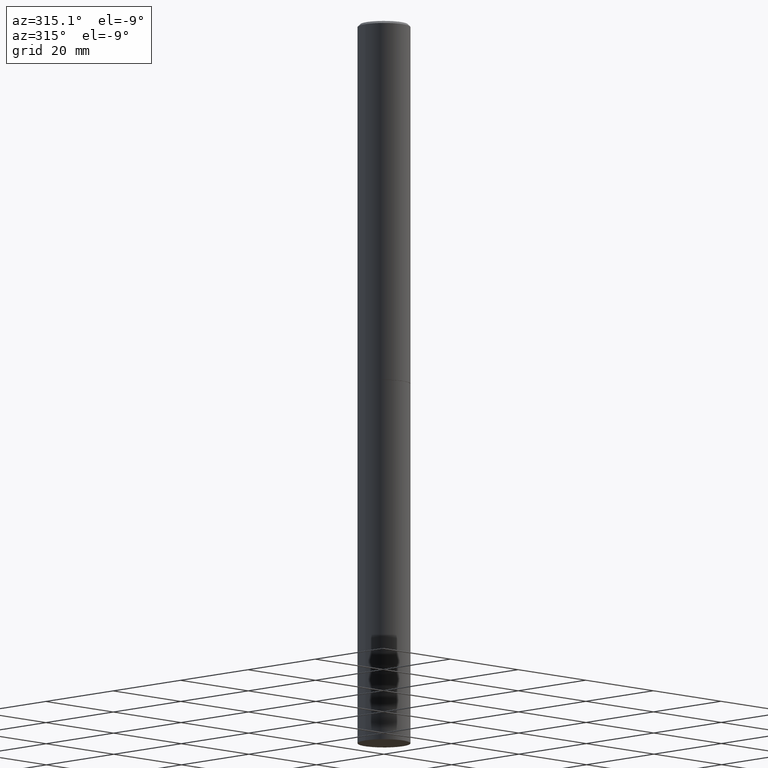
[diagram: clean part render]
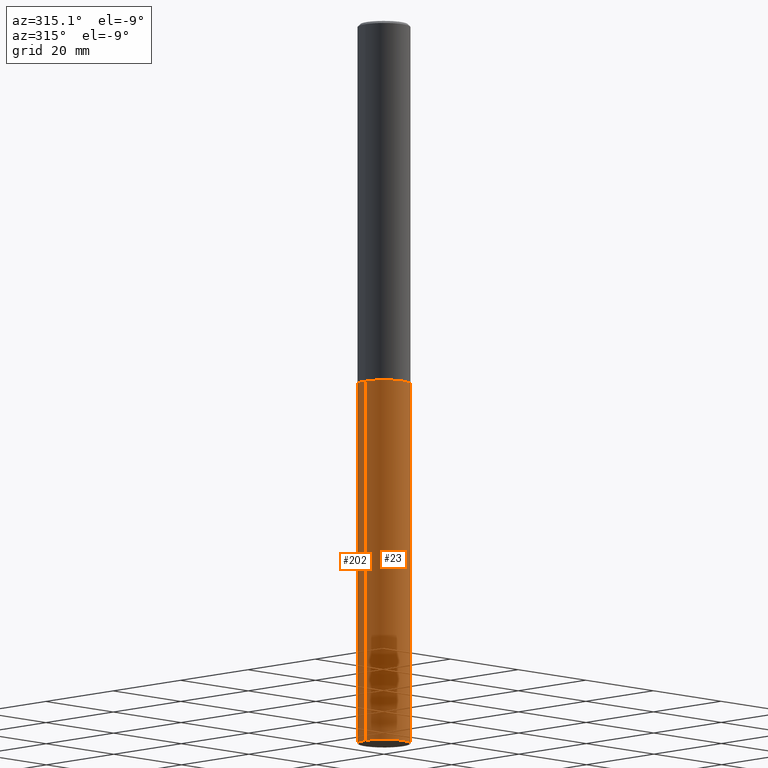
[diagram: same view with one multi-face feature highlighted, each face labeled with its STEP entity id]
A machine part, auxiliary view. The highlighted faces form ONE feature: a constant-radius fillet chain: 2 tangent blend faces with common blend radius 5.5562 mm. The faces share edges in the B-rep.
Their STEP definitions:
[1] entity #202 (Cylinder):
#5 = CARTESIAN_POINT ( 'NONE',  ( 0.2187500000000000000, -2.247641111880274434E-14, -6.000000000000000888 ) ) ;
#10 = CARTESIAN_POINT ( 'NONE',  ( 0.2187500000000000000, -1.200196710227330483E-14, -2.999999999999999556 ) ) ;
#21 = DIRECTION ( 'NONE',  ( 1.000000000000000000, -6.982962677686266711E-15, 4.876176775795935232E-29 ) ) ;
#27 = VERTEX_POINT ( 'NONE', #271 ) ;
#31 = VERTEX_POINT ( 'NONE', #10 ) ;
#33 = ORIENTED_EDGE ( 'NONE', *, *, #287, .T. ) ;
#40 = CARTESIAN_POINT ( 'NONE',  ( 0.2187500000000000000, -1.527523085743870843E-15, 1.066663669705360885E-29 ) ) ;
#57 = EDGE_CURVE ( 'NONE', #31, #85, #192, .T. ) ;
#63 = AXIS2_PLACEMENT_3D ( 'NONE', #171, #286, #21 ) ;
#66 = DIRECTION ( 'NONE',  ( -2.445468806185136877E-29, 3.491481338843145188E-15, 1.000000000000000000 ) ) ;
#77 = EDGE_CURVE ( 'NONE', #27, #85, #322, .T. ) ;
#81 = CARTESIAN_POINT ( 'NONE',  ( -0.2187500000000000000, -1.415735379031893458E-14, -2.999999999999999556 ) ) ;
#83 = VECTOR ( 'NONE', #66, 39.37007874015748143 ) ;
#85 = VERTEX_POINT ( 'NONE', #81 ) ;
#104 = CARTESIAN_POINT ( 'NONE',  ( 7.336406418555408669E-29, -1.047444401652943478E-14, -2.999999999999999556 ) ) ;
#117 = EDGE_LOOP ( 'NONE', ( #33, #323, #194, #176 ) ) ;
#155 = DIRECTION ( 'NONE',  ( 1.000000000000000000, -6.982962677686262766E-15, 0.000000000000000000 ) ) ;
#160 = LINE ( 'NONE', #40, #179 ) ;
#169 = CYLINDRICAL_SURFACE ( 'NONE', #63, 0.2187500000000000000 ) ;
#171 = CARTESIAN_POINT ( 'NONE',  ( 0.000000000000000000, 0.000000000000000000, 0.000000000000000000 ) ) ;
#176 = ORIENTED_EDGE ( 'NONE', *, *, #319, .F. ) ;
#179 = VECTOR ( 'NONE', #246, 39.37007874015748143 ) ;
#192 = CIRCLE ( 'NONE', #294, 0.2187500000000000000 ) ;
#194 = ORIENTED_EDGE ( 'NONE', *, *, #57, .F. ) ;
#202 = ADVANCED_FACE ( 'NONE', ( #313 ), #169, .T. ) ;
#205 = CARTESIAN_POINT ( 'NONE',  ( -0.2187500000000000000, 1.554312234475219157E-15, -1.076017050993260622E-29 ) ) ;
#229 = VERTEX_POINT ( 'NONE', #5 ) ;
#246 = DIRECTION ( 'NONE',  ( -2.445468806185136877E-29, 3.491481338843145188E-15, 1.000000000000000000 ) ) ;
#253 = CARTESIAN_POINT ( 'NONE',  ( 1.467281283711081958E-28, -2.094888803305887271E-14, -6.000000000000000888 ) ) ;
#259 = DIRECTION ( 'NONE',  ( 1.000000000000000000, -6.982962677686262766E-15, 0.000000000000000000 ) ) ;
#268 = DIRECTION ( 'NONE',  ( -2.445468806185136597E-29, 3.491481338843145583E-15, 1.000000000000000000 ) ) ;
#271 = CARTESIAN_POINT ( 'NONE',  ( -0.2187500000000000000, -1.415735379031893458E-14, -6.000000000000000888 ) ) ;
#286 = DIRECTION ( 'NONE',  ( -2.445468806185136597E-29, 3.491481338843145583E-15, 1.000000000000000000 ) ) ;
#287 = EDGE_CURVE ( 'NONE', #229, #27, #333, .T. ) ;
#294 = AXIS2_PLACEMENT_3D ( 'NONE', #104, #326, #259 ) ;
#313 = FACE_OUTER_BOUND ( 'NONE', #117, .T. ) ;
#318 = AXIS2_PLACEMENT_3D ( 'NONE', #253, #268, #155 ) ;
#319 = EDGE_CURVE ( 'NONE', #229, #31, #160, .T. ) ;
#322 = LINE ( 'NONE', #205, #83 ) ;
#323 = ORIENTED_EDGE ( 'NONE', *, *, #77, .T. ) ;
#326 = DIRECTION ( 'NONE',  ( -2.445468806185136597E-29, 3.491481338843145583E-15, 1.000000000000000000 ) ) ;
#333 = CIRCLE ( 'NONE', #318, 0.2187500000000000000 ) ;
[2] entity #23 (Cylinder):
#5 = CARTESIAN_POINT ( 'NONE',  ( 0.2187500000000000000, -2.247641111880274434E-14, -6.000000000000000888 ) ) ;
#6 = DIRECTION ( 'NONE',  ( 1.000000000000000000, -6.982962677686266711E-15, 4.876176775795935232E-29 ) ) ;
#10 = CARTESIAN_POINT ( 'NONE',  ( 0.2187500000000000000, -1.200196710227330483E-14, -2.999999999999999556 ) ) ;
#17 = EDGE_CURVE ( 'NONE', #27, #229, #359, .T. ) ;
#23 = ADVANCED_FACE ( 'NONE', ( #248 ), #221, .T. ) ;
#27 = VERTEX_POINT ( 'NONE', #271 ) ;
#28 = CARTESIAN_POINT ( 'NONE',  ( 1.467281283711081958E-28, -2.094888803305887271E-14, -6.000000000000000888 ) ) ;
#31 = VERTEX_POINT ( 'NONE', #10 ) ;
#36 = ORIENTED_EDGE ( 'NONE', *, *, #17, .T. ) ;
#40 = CARTESIAN_POINT ( 'NONE',  ( 0.2187500000000000000, -1.527523085743870843E-15, 1.066663669705360885E-29 ) ) ;
#66 = DIRECTION ( 'NONE',  ( -2.445468806185136877E-29, 3.491481338843145188E-15, 1.000000000000000000 ) ) ;
#67 = AXIS2_PLACEMENT_3D ( 'NONE', #245, #187, #6 ) ;
#77 = EDGE_CURVE ( 'NONE', #27, #85, #322, .T. ) ;
#81 = CARTESIAN_POINT ( 'NONE',  ( -0.2187500000000000000, -1.415735379031893458E-14, -2.999999999999999556 ) ) ;
#83 = VECTOR ( 'NONE', #66, 39.37007874015748143 ) ;
#85 = VERTEX_POINT ( 'NONE', #81 ) ;
#96 = ORIENTED_EDGE ( 'NONE', *, *, #319, .T. ) ;
#106 = DIRECTION ( 'NONE',  ( 1.000000000000000000, -6.982962677686262766E-15, 0.000000000000000000 ) ) ;
#133 = EDGE_CURVE ( 'NONE', #85, #31, #157, .T. ) ;
#157 = CIRCLE ( 'NONE', #208, 0.2187500000000000000 ) ;
#160 = LINE ( 'NONE', #40, #179 ) ;
#179 = VECTOR ( 'NONE', #246, 39.37007874015748143 ) ;
#186 = DIRECTION ( 'NONE',  ( -2.445468806185136597E-29, 3.491481338843145583E-15, 1.000000000000000000 ) ) ;
#187 = DIRECTION ( 'NONE',  ( -2.445468806185136597E-29, 3.491481338843145583E-15, 1.000000000000000000 ) ) ;
#195 = EDGE_LOOP ( 'NONE', ( #238, #36, #96, #300 ) ) ;
#205 = CARTESIAN_POINT ( 'NONE',  ( -0.2187500000000000000, 1.554312234475219157E-15, -1.076017050993260622E-29 ) ) ;
#208 = AXIS2_PLACEMENT_3D ( 'NONE', #214, #186, #298 ) ;
#214 = CARTESIAN_POINT ( 'NONE',  ( 7.336406418555408669E-29, -1.047444401652943478E-14, -2.999999999999999556 ) ) ;
#221 = CYLINDRICAL_SURFACE ( 'NONE', #67, 0.2187500000000000000 ) ;
#229 = VERTEX_POINT ( 'NONE', #5 ) ;
#230 = AXIS2_PLACEMENT_3D ( 'NONE', #28, #296, #106 ) ;
#238 = ORIENTED_EDGE ( 'NONE', *, *, #77, .F. ) ;
#245 = CARTESIAN_POINT ( 'NONE',  ( 0.000000000000000000, 0.000000000000000000, 0.000000000000000000 ) ) ;
#246 = DIRECTION ( 'NONE',  ( -2.445468806185136877E-29, 3.491481338843145188E-15, 1.000000000000000000 ) ) ;
#248 = FACE_OUTER_BOUND ( 'NONE', #195, .T. ) ;
#271 = CARTESIAN_POINT ( 'NONE',  ( -0.2187500000000000000, -1.415735379031893458E-14, -6.000000000000000888 ) ) ;
#296 = DIRECTION ( 'NONE',  ( -2.445468806185136597E-29, 3.491481338843145583E-15, 1.000000000000000000 ) ) ;
#298 = DIRECTION ( 'NONE',  ( 1.000000000000000000, -6.982962677686262766E-15, 0.000000000000000000 ) ) ;
#300 = ORIENTED_EDGE ( 'NONE', *, *, #133, .F. ) ;
#319 = EDGE_CURVE ( 'NONE', #229, #31, #160, .T. ) ;
#322 = LINE ( 'NONE', #205, #83 ) ;
#359 = CIRCLE ( 'NONE', #230, 0.2187500000000000000 ) ;